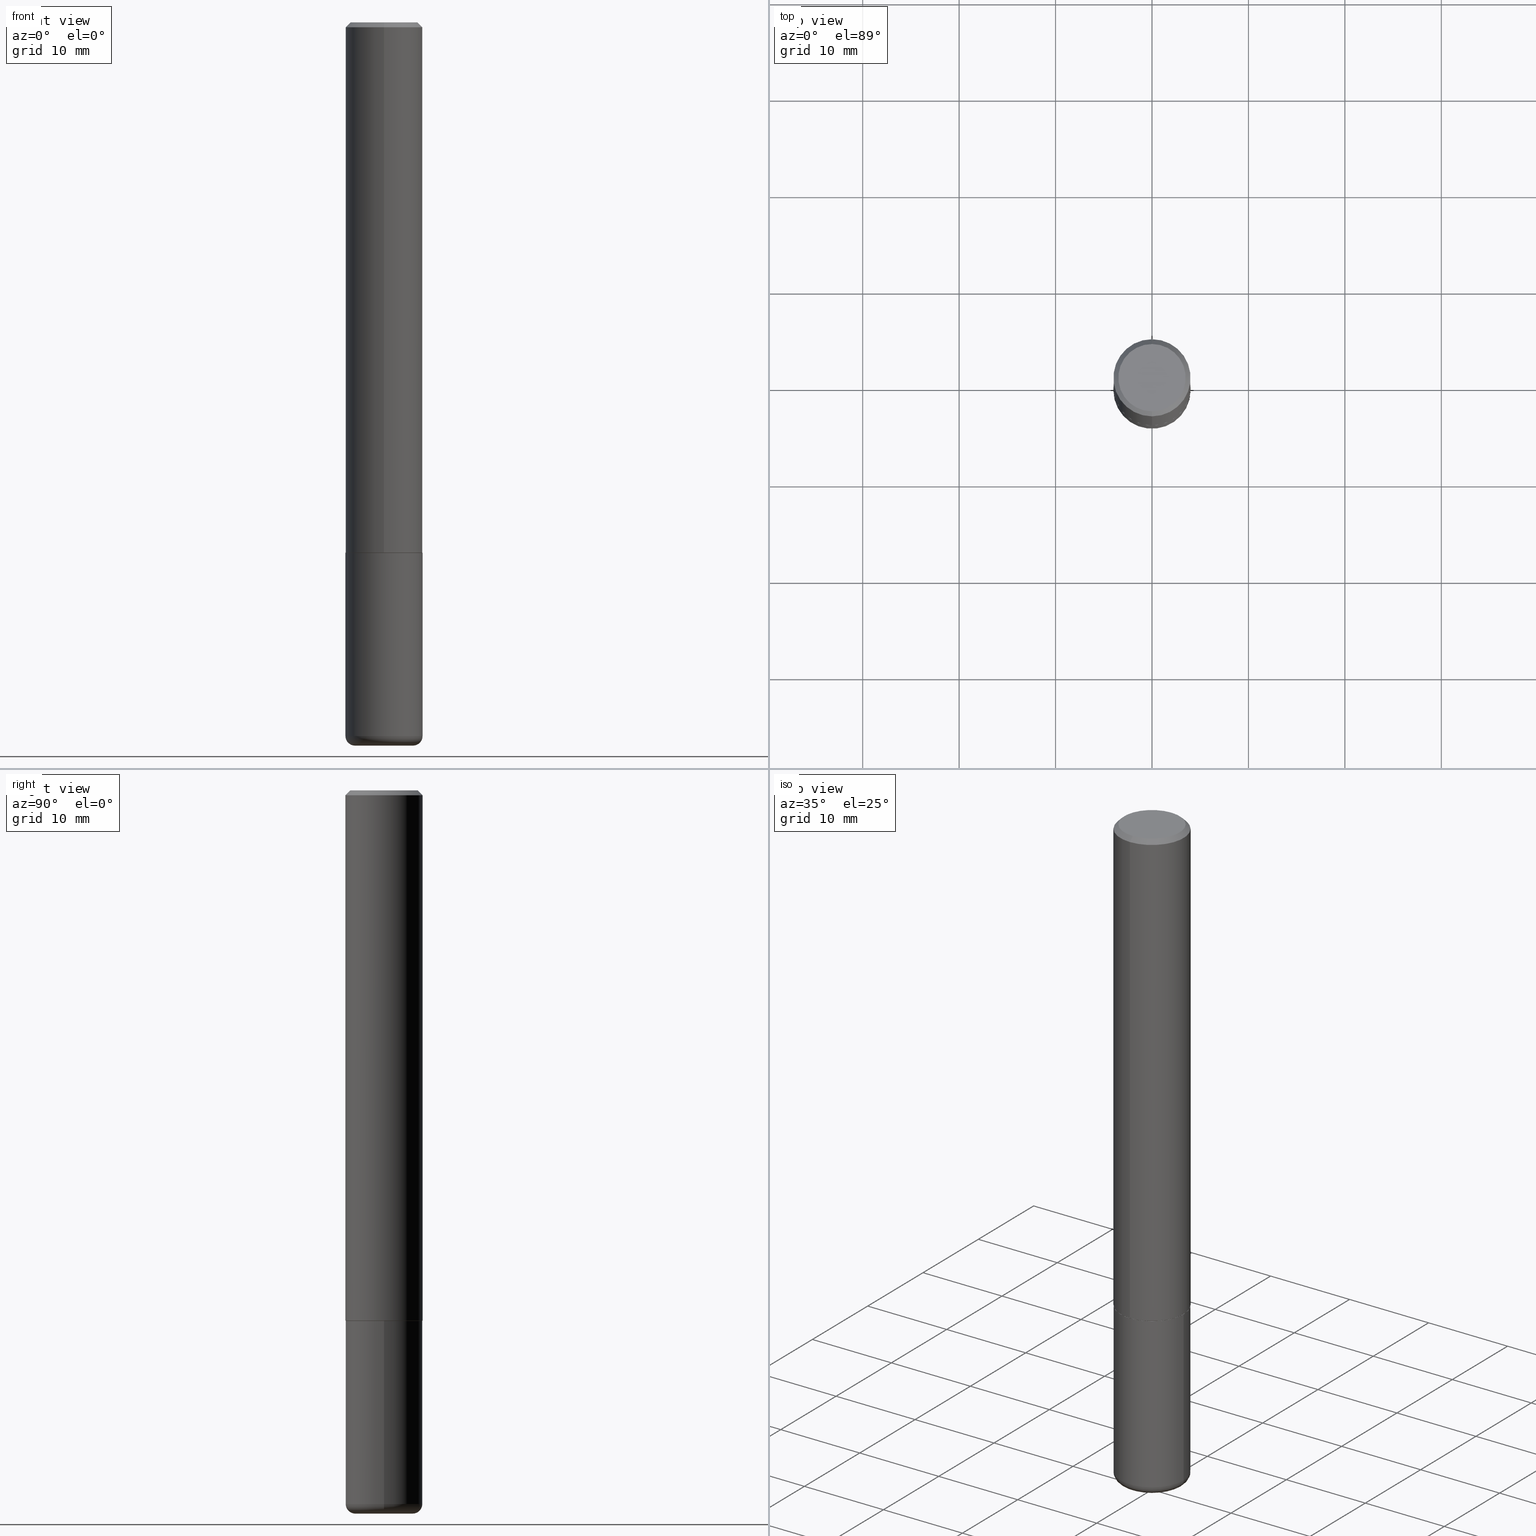
[diagram: canonical four-view strip — front | top / right | iso, engineering-drawing reading convention]
A machine part, canonical four-view strip (front | top / right | iso — engineering-drawing reading convention). The complete STEP part file that produces these views, byte-faithful:
ISO-10303-21;
HEADER;
FILE_DESCRIPTION (( 'STEP AP203' ),
    '1' );
FILE_NAME ('74357.STEP',
    '2024-03-06T15:08:49',
    ( '' ),
    ( '' ),
    'SwSTEP 2.0',
    'SolidWorks 2023',
    '' );
FILE_SCHEMA (( 'CONFIG_CONTROL_DESIGN' ));
ENDSEC;

DATA;
#1 = EDGE_LOOP ( 'NONE', ( #62, #51, #418, #318 ) ) ;
#2 = APPROVAL_STATUS ( 'not_yet_approved' ) ;
#3 = DIRECTION ( 'NONE',  ( -2.444928043019069804E-29, 3.492255742475281487E-15, 1.000000000000000000 ) ) ;
#4 =( NAMED_UNIT ( * ) PLANE_ANGLE_UNIT ( ) SI_UNIT ( $, .RADIAN. ) );
#5 = CYLINDRICAL_SURFACE ( 'NONE', #210, 0.1575000000000001676 ) ;
#6 = ORGANIZATION ( 'UNSPECIFIED', 'UNSPECIFIED', '' ) ;
#7 = ADVANCED_FACE ( 'NONE', ( #324 ), #64, .T. ) ;
#8 = CARTESIAN_POINT ( 'NONE',  ( 1.111999381464609449E-15, 0.1564999999999924507, -2.165400000000000436 ) ) ;
#9 = CARTESIAN_POINT ( 'NONE',  ( 4.889856086038147210E-31, -6.984511484950574659E-17, -0.02000000000000003511 ) ) ;
#10 = VECTOR ( 'NONE', #78, 39.37007874015748143 ) ;
#11 = LOCAL_TIME ( 10, 8, 49.00000000000000000, #183 ) ;
#12 = ADVANCED_FACE ( 'NONE', ( #160 ), #230, .T. ) ;
#13 = DIRECTION ( 'NONE',  ( 1.000000000000000000, -6.982962677686273021E-15, 0.000000000000000000 ) ) ;
#14 = PLANE ( 'NONE',  #195 ) ;
#15 = CARTESIAN_POINT ( 'NONE',  ( 5.294247184353492784E-29, -7.562130584755974132E-15, -2.165399999999999991 ) ) ;
#16 = CARTESIAN_POINT ( 'NONE',  ( -1.099816621735587875E-15, -0.1575000000000001676, 5.500302794398574170E-16 ) ) ;
#17 = CARTESIAN_POINT ( 'NONE',  ( 1.099816621735587480E-15, 0.1574999999999999456, -0.02000000000000058328 ) ) ;
#18 = PERSON_AND_ORGANIZATION_ROLE ( 'creator' ) ;
#19 = PERSON_AND_ORGANIZATION ( #333, #6 ) ;
#20 = LOCAL_TIME ( 10, 8, 49.00000000000000000, #58 ) ;
#21 = DIRECTION ( 'NONE',  ( -2.444928043019069804E-29, 3.492255742475281487E-15, 1.000000000000000000 ) ) ;
#22 = ORIENTED_EDGE ( 'NONE', *, *, #254, .T. ) ;
#23 = ADVANCED_FACE ( 'NONE', ( #89 ), #220, .F. ) ;
#24 = DIRECTION ( 'NONE',  ( -2.445468806185136597E-29, 3.491481338843145583E-15, 1.000000000000000000 ) ) ;
#25 = ORIENTED_EDGE ( 'NONE', *, *, #54, .F. ) ;
#26 = EDGE_CURVE ( 'NONE', #377, #386, #387, .T. ) ;
#27 = DIRECTION ( 'NONE',  ( -2.445468806185136597E-29, 3.491481338843145583E-15, 1.000000000000000000 ) ) ;
#28 = DIRECTION ( 'NONE',  ( -2.445468806185136877E-29, 3.491481338843145188E-15, 1.000000000000000000 ) ) ;
#29 = DIRECTION ( 'NONE',  ( 6.982962677686264344E-15, 1.000000000000000000, -3.496114991891764787E-15 ) ) ;
#30 = CIRCLE ( 'NONE', #349, 0.1575000000000000011 ) ;
#31 = ORIENTED_EDGE ( 'NONE', *, *, #44, .F. ) ;
#32 = CONICAL_SURFACE ( 'NONE', #231, 0.1565000000000000002, 0.7853981633975678500 ) ;
#33 = ORIENTED_EDGE ( 'NONE', *, *, #381, .F. ) ;
#34 = CARTESIAN_POINT ( 'NONE',  ( 0.000000000000000000, 0.000000000000000000, 0.000000000000000000 ) ) ;
#35 = EDGE_CURVE ( 'NONE', #266, #132, #405, .T. ) ;
#36 = AXIS2_PLACEMENT_3D ( 'NONE', #164, #229, #336 ) ;
#37 = DATE_TIME_ROLE ( 'classification_date' ) ;
#38 = DIRECTION ( 'NONE',  ( -2.444928043019069804E-29, 3.492255742475281487E-15, 1.000000000000000000 ) ) ;
#39 = CARTESIAN_POINT ( 'NONE',  ( -1.011923454671300053E-15, -0.1374999999999997891, 6.809117321244884418E-16 ) ) ;
#40 = VECTOR ( 'NONE', #100, 39.37007874015748143 ) ;
#41 = FACE_OUTER_BOUND ( 'NONE', #326, .T. ) ;
#42 = DESIGN_CONTEXT ( 'detailed design', #400, 'design' ) ;
#43 = DIRECTION ( 'NONE',  ( 4.937700262164546464E-15, 0.7071067811865447972, -0.7071067811865500152 ) ) ;
#44 = EDGE_CURVE ( 'NONE', #247, #180, #48, .T. ) ;
#45 = ADVANCED_FACE ( 'NONE', ( #308 ), #174, .T. ) ;
#46 = CARTESIAN_POINT ( 'NONE',  ( 0.000000000000000000, 0.000000000000000000, 0.000000000000000000 ) ) ;
#47 = ORIENTED_EDGE ( 'NONE', *, *, #331, .F. ) ;
#48 = CIRCLE ( 'NONE', #113, 0.1565000000000000002 ) ;
#49 = AXIS2_PLACEMENT_3D ( 'NONE', #77, #215, #258 ) ;
#50 = DIRECTION ( 'NONE',  ( -2.444928043019069243E-29, 3.492255742475281487E-15, 1.000000000000000000 ) ) ;
#51 = ORIENTED_EDGE ( 'NONE', *, *, #381, .T. ) ;
#52 = APPROVAL_STATUS ( 'not_yet_approved' ) ;
#53 = ORIENTED_EDGE ( 'NONE', *, *, #163, .F. ) ;
#54 = EDGE_CURVE ( 'NONE', #80, #351, #268, .T. ) ;
#55 = VERTEX_POINT ( 'NONE', #17 ) ;
#56 = VECTOR ( 'NONE', #130, 39.37007874015748143 ) ;
#57 = ORIENTED_EDGE ( 'NONE', *, *, #54, .T. ) ;
#58 = COORDINATED_UNIVERSAL_TIME_OFFSET ( 5, 0, .BEHIND. ) ;
#59 = CARTESIAN_POINT ( 'NONE',  ( -4.907620139431751550E-45, 7.009885081384458012E-31, 2.007265675341379917E-16 ) ) ;
#60 = ORIENTED_EDGE ( 'NONE', *, *, #137, .T. ) ;
#61 = CARTESIAN_POINT ( 'NONE',  ( 4.889856086038147210E-31, -6.984511484950574659E-17, -0.02000000000000003511 ) ) ;
#62 = ORIENTED_EDGE ( 'NONE', *, *, #98, .T. ) ;
#63 = ORIENTED_EDGE ( 'NONE', *, *, #163, .T. ) ;
#64 = CONICAL_SURFACE ( 'NONE', #415, 0.1575000000000000289, 0.7853981633974481680 ) ;
#65 = VECTOR ( 'NONE', #28, 39.37007874015748143 ) ;
#66 = CC_DESIGN_DATE_AND_TIME_ASSIGNMENT ( #151, #37, ( #269 ) ) ;
#67 = CIRCLE ( 'NONE', #103, 0.1180999999999999966 ) ;
#68 = CARTESIAN_POINT ( 'NONE',  ( -0.1575000000000000011, -7.747162903036124976E-15, -2.165399999999999991 ) ) ;
#69 = LINE ( 'NONE', #235, #375 ) ;
#70 = PRODUCT ( '74357', '74357', '', ( #292 ) ) ;
#71 = CARTESIAN_POINT ( 'NONE',  ( -1.080528434649015779E-15, -0.1575000000000000844, -0.01999999999999948347 ) ) ;
#72 = FACE_OUTER_BOUND ( 'NONE', #124, .T. ) ;
#73 = TOROIDAL_SURFACE ( 'NONE', #162, 0.1180999999999999966, 0.03940000000000005997 ) ;
#74 = DIRECTION ( 'NONE',  ( -6.982962677686265922E-15, -1.000000000000000000, 3.491179544618866730E-15 ) ) ;
#75 = ADVANCED_BREP_SHAPE_REPRESENTATION ( '74357', ( #197, #341, #306 ), #139 ) ;
#76 = EDGE_CURVE ( 'NONE', #386, #377, #30, .T. ) ;
#77 = CARTESIAN_POINT ( 'NONE',  ( 9.601573681818600950E-16, 0.1374999999999997891, -3.798218808232814543E-16 ) ) ;
#78 = DIRECTION ( 'NONE',  ( -2.444928043019069524E-29, 3.492255742475281487E-15, 1.000000000000000000 ) ) ;
#79 = CC_DESIGN_APPROVAL ( #199, ( #133 ) ) ;
#80 = VERTEX_POINT ( 'NONE', #307 ) ;
#81 = ADVANCED_FACE ( 'NONE', ( #394 ), #185, .T. ) ;
#82 = SHAPE_DEFINITION_REPRESENTATION ( #305, #75 ) ;
#83 = ORIENTED_EDGE ( 'NONE', *, *, #76, .T. ) ;
#84 = PRODUCT_DEFINITION_FORMATION_WITH_SPECIFIED_SOURCE ( 'ANY', '', #70, .NOT_KNOWN. ) ;
#85 = CARTESIAN_POINT ( 'NONE',  ( 4.889856086038147210E-31, -6.984511484950574659E-17, -0.02000000000000003511 ) ) ;
#86 = DIRECTION ( 'NONE',  ( 1.000000000000000000, 0.000000000000000000, 0.000000000000000000 ) ) ;
#87 = EDGE_LOOP ( 'NONE', ( #355, #47, #417, #117 ) ) ;
#88 = ADVANCED_FACE ( 'NONE', ( #41 ), #276, .T. ) ;
#89 = FACE_OUTER_BOUND ( 'NONE', #259, .T. ) ;
#90 = PERSON_AND_ORGANIZATION_ROLE ( 'design_owner' ) ;
#91 = EDGE_LOOP ( 'NONE', ( #121, #161 ) ) ;
#92 = FACE_OUTER_BOUND ( 'NONE', #119, .T. ) ;
#93 = COORDINATED_UNIVERSAL_TIME_OFFSET ( 5, 0, .BEHIND. ) ;
#94 = PERSON_AND_ORGANIZATION ( #333, #6 ) ;
#95 = CIRCLE ( 'NONE', #129, 0.1575000000000003064 ) ;
#96 = ORIENTED_EDGE ( 'NONE', *, *, #410, .F. ) ;
#97 = DIRECTION ( 'NONE',  ( -6.982962677686265133E-15, -1.000000000000000000, 3.492255742475281487E-15 ) ) ;
#98 = EDGE_CURVE ( 'NONE', #225, #351, #223, .T. ) ;
#99 = CARTESIAN_POINT ( 'NONE',  ( 0.1180999999999999966, -1.099676962482036915E-14, -2.913399999999999768 ) ) ;
#100 = DIRECTION ( 'NONE',  ( -2.445468806185136877E-29, 3.491481338843145188E-15, 1.000000000000000000 ) ) ;
#101 =( LENGTH_UNIT ( ) NAMED_UNIT ( * ) SI_UNIT ( $, .METRE. ) );
#102 = EDGE_CURVE ( 'NONE', #266, #55, #69, .T. ) ;
#103 = AXIS2_PLACEMENT_3D ( 'NONE', #282, #27, #253 ) ;
#104 = CARTESIAN_POINT ( 'NONE',  ( 4.889856086038147210E-31, -6.984511484950574659E-17, -0.02000000000000003511 ) ) ;
#105 = DIRECTION ( 'NONE',  ( -2.444928043019069804E-29, 3.492255742475281487E-15, 1.000000000000000000 ) ) ;
#106 = DIRECTION ( 'NONE',  ( -2.445468806185136597E-29, 3.491481338843145583E-15, 1.000000000000000000 ) ) ;
#107 = UNCERTAINTY_MEASURE_WITH_UNIT (LENGTH_MEASURE( 1.000000000000000082E-05 ), #196, 'distance_accuracy_value', 'NONE');
#108 = APPLICATION_PROTOCOL_DEFINITION ( 'international standard', 'config_control_design', 1994, #149 ) ;
#109 = DIRECTION ( 'NONE',  ( 1.000000000000000000, -6.982962677686268288E-15, 0.000000000000000000 ) ) ;
#110 = LINE ( 'NONE', #71, #358 ) ;
#111 = FACE_OUTER_BOUND ( 'NONE', #256, .T. ) ;
#112 = LINE ( 'NONE', #16, #10 ) ;
#113 = AXIS2_PLACEMENT_3D ( 'NONE', #303, #170, #74 ) ;
#114 = ADVANCED_FACE ( 'NONE', ( #72 ), #14, .F. ) ;
#115 = VECTOR ( 'NONE', #273, 39.37007874015748143 ) ;
#116 = CARTESIAN_POINT ( 'NONE',  ( 5.291802256310474180E-29, -7.558638329013498276E-15, -2.164399999999999658 ) ) ;
#117 = ORIENTED_EDGE ( 'NONE', *, *, #228, .T. ) ;
#118 = ORIENTED_EDGE ( 'NONE', *, *, #396, .T. ) ;
#119 = EDGE_LOOP ( 'NONE', ( #33, #158, #297, #402 ) ) ;
#120 = DATE_AND_TIME ( #284, #406 ) ;
#121 = ORIENTED_EDGE ( 'NONE', *, *, #331, .T. ) ;
#122 = PERSON_AND_ORGANIZATION ( #333, #6 ) ;
#123 = CALENDAR_DATE ( 2024, 6, 3 ) ;
#124 = EDGE_LOOP ( 'NONE', ( #356, #31 ) ) ;
#125 = APPROVAL_STATUS ( 'not_yet_approved' ) ;
#126 = ORIENTED_EDGE ( 'NONE', *, *, #410, .T. ) ;
#127 = ORIENTED_EDGE ( 'NONE', *, *, #102, .T. ) ;
#128 = CC_DESIGN_DATE_AND_TIME_ASSIGNMENT ( #255, #289, ( #133 ) ) ;
#129 = AXIS2_PLACEMENT_3D ( 'NONE', #203, #21, #148 ) ;
#130 = DIRECTION ( 'NONE',  ( -4.937700262165138110E-15, -0.7071067811866296182, 0.7071067811864654162 ) ) ;
#131 = ORIENTED_EDGE ( 'NONE', *, *, #98, .F. ) ;
#132 = VERTEX_POINT ( 'NONE', #243 ) ;
#133 = PRODUCT_DEFINITION ( 'UNKNOWN', '', #84, #42 ) ;
#134 = ORIENTED_EDGE ( 'NONE', *, *, #228, .F. ) ;
#135 = AXIS2_PLACEMENT_3D ( 'NONE', #191, #193, #202 ) ;
#136 = AXIS2_PLACEMENT_3D ( 'NONE', #61, #320, #328 ) ;
#137 = EDGE_CURVE ( 'NONE', #132, #380, #112, .T. ) ;
#138 = CARTESIAN_POINT ( 'NONE',  ( -0.1180999999999999966, -9.332930761652941905E-15, -2.913399999999999768 ) ) ;
#139 =( GEOMETRIC_REPRESENTATION_CONTEXT ( 3 ) GLOBAL_UNCERTAINTY_ASSIGNED_CONTEXT ( ( #107 ) ) GLOBAL_UNIT_ASSIGNED_CONTEXT ( ( #196, #4, #227 ) ) REPRESENTATION_CONTEXT ( 'NONE', 'WORKASPACE' ) );
#140 = DIRECTION ( 'NONE',  ( 2.438088387897960049E-29, -3.491481338843145188E-15, -1.000000000000000000 ) ) ;
#141 = CC_DESIGN_PERSON_AND_ORGANIZATION_ASSIGNMENT ( #122, #211, ( #269 ) ) ;
#142 = DIMENSIONAL_EXPONENTS ( 1.000000000000000000, 0.000000000000000000, 0.000000000000000000, 0.000000000000000000, 0.000000000000000000, 0.000000000000000000, 0.000000000000000000 ) ;
#143 = DIRECTION ( 'NONE',  ( 7.105427357601001859E-15, 1.000000000000000000, -3.491481338843145583E-15 ) ) ;
#144 = AXIS2_PLACEMENT_3D ( 'NONE', #302, #367, #232 ) ;
#145 = AXIS2_PLACEMENT_3D ( 'NONE', #9, #205, #238 ) ;
#146 = AXIS2_PLACEMENT_3D ( 'NONE', #186, #213, #154 ) ;
#147 = CARTESIAN_POINT ( 'NONE',  ( 5.294247184353492784E-29, -7.562130584755974132E-15, -2.165399999999999991 ) ) ;
#148 = DIRECTION ( 'NONE',  ( -6.982962677686265133E-15, -1.000000000000000000, 3.469013325287946588E-15 ) ) ;
#149 = APPLICATION_CONTEXT ( 'configuration controlled 3d designs of mechanical parts and assemblies' ) ;
#150 = COORDINATED_UNIVERSAL_TIME_OFFSET ( 5, 0, .BEHIND. ) ;
#151 = DATE_AND_TIME ( #317, #11 ) ;
#152 = CC_DESIGN_APPROVAL ( #271, ( #269 ) ) ;
#153 = CARTESIAN_POINT ( 'NONE',  ( 7.124628819939776708E-29, -1.017208173258561931E-14, -2.913399999999999768 ) ) ;
#154 = DIRECTION ( 'NONE',  ( 1.000000000000000000, -6.982962677686261977E-15, 0.000000000000000000 ) ) ;
#155 = ORIENTED_EDGE ( 'NONE', *, *, #35, .F. ) ;
#156 = ADVANCED_FACE ( 'NONE', ( #207 ), #241, .T. ) ;
#157 = DIRECTION ( 'NONE',  ( -6.982962677686264344E-15, -1.000000000000000000, 3.496114991891764787E-15 ) ) ;
#158 = ORIENTED_EDGE ( 'NONE', *, *, #298, .T. ) ;
#159 = DIRECTION ( 'NONE',  ( -2.444928043019069804E-29, 3.492255742475281487E-15, 1.000000000000000000 ) ) ;
#160 = FACE_OUTER_BOUND ( 'NONE', #252, .T. ) ;
#161 = ORIENTED_EDGE ( 'NONE', *, *, #285, .T. ) ;
#162 = AXIS2_PLACEMENT_3D ( 'NONE', #153, #288, #332 ) ;
#163 = EDGE_CURVE ( 'NONE', #132, #266, #95, .T. ) ;
#164 = CARTESIAN_POINT ( 'NONE',  ( 5.294247184353492784E-29, -7.562130584755974132E-15, -2.165399999999999991 ) ) ;
#165 = DIRECTION ( 'NONE',  ( 1.000000000000000000, -6.982962677686265922E-15, 4.876176775795935232E-29 ) ) ;
#166 = CARTESIAN_POINT ( 'NONE',  ( 0.000000000000000000, 0.000000000000000000, 0.000000000000000000 ) ) ;
#167 = CC_DESIGN_PERSON_AND_ORGANIZATION_ASSIGNMENT ( #94, #90, ( #70 ) ) ;
#168 = DIRECTION ( 'NONE',  ( -2.445468806185136597E-29, 3.491481338843145583E-15, 1.000000000000000000 ) ) ;
#169 = DIRECTION ( 'NONE',  ( 1.000000000000000000, -6.982962677686268288E-15, 0.000000000000000000 ) ) ;
#170 = DIRECTION ( 'NONE',  ( -2.444928043019069804E-29, 3.492255742475281487E-15, 1.000000000000000000 ) ) ;
#171 = CARTESIAN_POINT ( 'NONE',  ( 1.119104808822185805E-15, 0.1574999999999927569, -2.164400000000000102 ) ) ;
#172 = DIRECTION ( 'NONE',  ( -2.445468806185136597E-29, 3.491481338843145583E-15, 1.000000000000000000 ) ) ;
#173 = APPROVAL_PERSON_ORGANIZATION ( #222, #199, #264 ) ;
#174 = PLANE ( 'NONE',  #209 ) ;
#175 = EDGE_CURVE ( 'NONE', #180, #247, #384, .T. ) ;
#176 = ORIENTED_EDGE ( 'NONE', *, *, #102, .F. ) ;
#177 = DIRECTION ( 'NONE',  ( -6.982962677686265922E-15, -1.000000000000000000, 3.491179544618866730E-15 ) ) ;
#178 = CLOSED_SHELL ( 'NONE', ( #357, #88, #7, #81, #366, #325, #114, #340 ) ) ;
#179 = DIRECTION ( 'NONE',  ( 1.000000000000000000, -6.982962677686265922E-15, 4.876176775795935232E-29 ) ) ;
#180 = VERTEX_POINT ( 'NONE', #373 ) ;
#181 = CIRCLE ( 'NONE', #146, 0.1575000000000000011 ) ;
#182 = ORIENTED_EDGE ( 'NONE', *, *, #285, .F. ) ;
#183 = COORDINATED_UNIVERSAL_TIME_OFFSET ( 5, 0, .BEHIND. ) ;
#184 = CARTESIAN_POINT ( 'NONE',  ( 1.115552095143411136E-15, 0.1564999999999924507, -2.165400000000000436 ) ) ;
#185 = CONICAL_SURFACE ( 'NONE', #145, 0.1575000000000000289, 0.7853981633974481680 ) ;
#186 = CARTESIAN_POINT ( 'NONE',  ( 7.124628819939776708E-29, -1.017208173258561931E-14, -2.913399999999999768 ) ) ;
#187 = AXIS2_PLACEMENT_3D ( 'NONE', #370, #309, #277 ) ;
#188 = ORIENTED_EDGE ( 'NONE', *, *, #315, .F. ) ;
#189 = CALENDAR_DATE ( 2024, 6, 3 ) ;
#190 = CARTESIAN_POINT ( 'NONE',  ( 0.1575000000000000011, -1.099816621735586889E-15, 7.679978421878598033E-30 ) ) ;
#191 = CARTESIAN_POINT ( 'NONE',  ( 5.295418152913294345E-29, -7.560453691130947423E-15, -2.165399999999999991 ) ) ;
#192 = APPLICATION_PROTOCOL_DEFINITION ( 'international standard', 'config_control_design', 1994, #400 ) ;
#193 = DIRECTION ( 'NONE',  ( 2.438088387897960049E-29, -3.491481338843145188E-15, -1.000000000000000000 ) ) ;
#194 = ORIENTED_EDGE ( 'NONE', *, *, #175, .T. ) ;
#195 = AXIS2_PLACEMENT_3D ( 'NONE', #311, #50, #279 ) ;
#196 =( CONVERSION_BASED_UNIT ( 'INCH', #392 ) LENGTH_UNIT ( ) NAMED_UNIT ( #142 ) );
#197 = MANIFOLD_SOLID_BREP ( 'Body-Move/Copy2[1]', #334 ) ;
#198 = APPROVAL_PERSON_ORGANIZATION ( #237, #271, #251 ) ;
#199 = APPROVAL ( #2, 'UNSPECIFIED' ) ;
#200 = CC_DESIGN_APPROVAL ( #361, ( #84 ) ) ;
#201 = CARTESIAN_POINT ( 'NONE',  ( 0.1575000000000000011, -8.660270312866534114E-15, -2.165399999999999991 ) ) ;
#202 = DIRECTION ( 'NONE',  ( -1.000000000000000000, 6.982962677686265922E-15, -4.876176775795935793E-29 ) ) ;
#203 = CARTESIAN_POINT ( 'NONE',  ( 5.291802256310474180E-29, -7.558638329013498276E-15, -2.164399999999999658 ) ) ;
#204 = EDGE_CURVE ( 'NONE', #80, #329, #67, .T. ) ;
#205 = DIRECTION ( 'NONE',  ( 2.444928043019069804E-29, -3.492255742475281487E-15, -1.000000000000000000 ) ) ;
#206 = DIRECTION ( 'NONE',  ( -1.000000000000000000, 7.105427357601014480E-15, 0.000000000000000000 ) ) ;
#207 = FACE_OUTER_BOUND ( 'NONE', #1, .T. ) ;
#208 = CC_DESIGN_PERSON_AND_ORGANIZATION_ASSIGNMENT ( #403, #248, ( #84 ) ) ;
#209 = AXIS2_PLACEMENT_3D ( 'NONE', #275, #140, #395 ) ;
#210 = AXIS2_PLACEMENT_3D ( 'NONE', #34, #3, #97 ) ;
#211 = PERSON_AND_ORGANIZATION_ROLE ( 'classification_officer' ) ;
#212 = PERSON_AND_ORGANIZATION ( #333, #6 ) ;
#213 = DIRECTION ( 'NONE',  ( -2.445468806185136597E-29, 3.491481338843145583E-15, 1.000000000000000000 ) ) ;
#214 = CC_DESIGN_PERSON_AND_ORGANIZATION_ASSIGNMENT ( #212, #321, ( #133 ) ) ;
#215 = DIRECTION ( 'NONE',  ( 2.444928043019069243E-29, -3.492255742475281487E-15, -1.000000000000000000 ) ) ;
#216 = AXIS2_PLACEMENT_3D ( 'NONE', #398, #363, #109 ) ;
#217 = CIRCLE ( 'NONE', #360, 0.1374999999999997891 ) ;
#218 = DIRECTION ( 'NONE',  ( 2.444928043019069804E-29, -3.492255742475281487E-15, -1.000000000000000000 ) ) ;
#219 = ORIENTED_EDGE ( 'NONE', *, *, #298, .F. ) ;
#220 = PLANE ( 'NONE',  #135 ) ;
#221 = EDGE_LOOP ( 'NONE', ( #182, #22, #118, #316 ) ) ;
#222 = PERSON_AND_ORGANIZATION ( #333, #6 ) ;
#223 = CIRCLE ( 'NONE', #144, 0.1575000000000000011 ) ;
#224 = LOCAL_TIME ( 10, 8, 49.00000000000000000, #150 ) ;
#225 = VERTEX_POINT ( 'NONE', #293 ) ;
#226 = DIRECTION ( 'NONE',  ( -2.444928043019069804E-29, 3.492255742475281487E-15, 1.000000000000000000 ) ) ;
#227 =( NAMED_UNIT ( * ) SI_UNIT ( $, .STERADIAN. ) SOLID_ANGLE_UNIT ( ) );
#228 = EDGE_CURVE ( 'NONE', #55, #380, #240, .T. ) ;
#229 = DIRECTION ( 'NONE',  ( -2.444928043019069804E-29, 3.492255742475281487E-15, 1.000000000000000000 ) ) ;
#230 = TOROIDAL_SURFACE ( 'NONE', #304, 0.1180999999999999966, 0.03940000000000005997 ) ;
#231 = AXIS2_PLACEMENT_3D ( 'NONE', #15, #236, #177 ) ;
#232 = DIRECTION ( 'NONE',  ( 1.000000000000000000, -6.982962677686261977E-15, 0.000000000000000000 ) ) ;
#233 = CARTESIAN_POINT ( 'NONE',  ( 7.220980290903470182E-29, -1.030964609733603853E-14, -2.952799999999999869 ) ) ;
#234 = PRODUCT_RELATED_PRODUCT_CATEGORY ( 'detail', '', ( #70 ) ) ;
#235 = CARTESIAN_POINT ( 'NONE',  ( 1.119104808822158787E-15, 0.1575000000000001676, -5.500302794398574170E-16 ) ) ;
#236 = DIRECTION ( 'NONE',  ( -2.444928043019069804E-29, 3.492255742475281487E-15, 1.000000000000000000 ) ) ;
#237 = PERSON_AND_ORGANIZATION ( #333, #6 ) ;
#238 = DIRECTION ( 'NONE',  ( 6.982962677686264344E-15, 1.000000000000000000, -3.496114991891764787E-15 ) ) ;
#239 = CARTESIAN_POINT ( 'NONE',  ( 0.1180999999999999966, -1.113433398957078679E-14, -2.952799999999999869 ) ) ;
#240 = CIRCLE ( 'NONE', #136, 0.1575000000000000289 ) ;
#241 = CYLINDRICAL_SURFACE ( 'NONE', #312, 0.1575000000000000011 ) ;
#242 = CARTESIAN_POINT ( 'NONE',  ( 0.000000000000000000, 0.000000000000000000, 0.000000000000000000 ) ) ;
#243 = CARTESIAN_POINT ( 'NONE',  ( -1.099816621735536007E-15, -0.1575000000000078559, -2.164399999999999213 ) ) ;
#244 = ORIENTED_EDGE ( 'NONE', *, *, #352, .T. ) ;
#245 = ADVANCED_FACE ( 'NONE', ( #346 ), #73, .T. ) ;
#246 = DIRECTION ( 'NONE',  ( -6.982962677686265922E-15, -1.000000000000000000, 3.491179544618866730E-15 ) ) ;
#247 = VERTEX_POINT ( 'NONE', #184 ) ;
#248 = PERSON_AND_ORGANIZATION_ROLE ( 'design_supplier' ) ;
#249 = APPROVAL_PERSON_ORGANIZATION ( #411, #361, #257 ) ;
#250 = VERTEX_POINT ( 'NONE', #362 ) ;
#251 = APPROVAL_ROLE ( '' ) ;
#252 = EDGE_LOOP ( 'NONE', ( #382, #57, #131, #96 ) ) ;
#253 = DIRECTION ( 'NONE',  ( 1.000000000000000000, -6.982962677686273021E-15, 0.000000000000000000 ) ) ;
#254 = EDGE_CURVE ( 'NONE', #265, #380, #110, .T. ) ;
#255 = DATE_AND_TIME ( #123, #278 ) ;
#256 = EDGE_LOOP ( 'NONE', ( #407, #287, #244, #155 ) ) ;
#257 = APPROVAL_ROLE ( '' ) ;
#258 = DIRECTION ( 'NONE',  ( 6.982962677686265922E-15, 1.000000000000000000, -3.492255742475281487E-15 ) ) ;
#259 = EDGE_LOOP ( 'NONE', ( #83, #343 ) ) ;
#260 = ORIENTED_EDGE ( 'NONE', *, *, #352, .F. ) ;
#261 = AXIS2_PLACEMENT_3D ( 'NONE', #147, #281, #246 ) ;
#262 = DIRECTION ( 'NONE',  ( -2.445468806185136597E-29, 3.491481338843145583E-15, 1.000000000000000000 ) ) ;
#263 = FACE_OUTER_BOUND ( 'NONE', #409, .T. ) ;
#264 = APPROVAL_ROLE ( '' ) ;
#265 = VERTEX_POINT ( 'NONE', #39 ) ;
#266 = VERTEX_POINT ( 'NONE', #171 ) ;
#267 = CYLINDRICAL_SURFACE ( 'NONE', #335, 0.1575000000000000011 ) ;
#268 = CIRCLE ( 'NONE', #319, 0.03940000000000005997 ) ;
#269 = SECURITY_CLASSIFICATION ( '', '', #374 ) ;
#270 = CARTESIAN_POINT ( 'NONE',  ( -0.1575000000000000011, 1.119104808822157801E-15, -7.747322767151475583E-30 ) ) ;
#271 = APPROVAL ( #52, 'UNSPECIFIED' ) ;
#272 = CARTESIAN_POINT ( 'NONE',  ( -1.080528434649015779E-15, -0.1575000000000000844, -0.01999999999999948347 ) ) ;
#273 = DIRECTION ( 'NONE',  ( 5.024295867788662713E-15, 0.7071067811866345032, 0.7071067811864605313 ) ) ;
#274 = DIRECTION ( 'NONE',  ( -6.982962677686265133E-15, -1.000000000000000000, 3.469013325287946588E-15 ) ) ;
#275 = CARTESIAN_POINT ( 'NONE',  ( 7.220980290903470182E-29, -1.030964609733603853E-14, -2.952799999999999869 ) ) ;
#276 = CYLINDRICAL_SURFACE ( 'NONE', #368, 0.1575000000000001676 ) ;
#277 = DIRECTION ( 'NONE',  ( -6.982962677686265922E-15, -1.000000000000000000, 3.492255742475281487E-15 ) ) ;
#278 = LOCAL_TIME ( 10, 8, 49.00000000000000000, #286 ) ;
#279 = DIRECTION ( 'NONE',  ( -6.982962677686265922E-15, -1.000000000000000000, 3.492255742475281487E-15 ) ) ;
#280 = EDGE_CURVE ( 'NONE', #225, #386, #323, .T. ) ;
#281 = DIRECTION ( 'NONE',  ( -2.444928043019069804E-29, 3.492255742475281487E-15, 1.000000000000000000 ) ) ;
#282 = CARTESIAN_POINT ( 'NONE',  ( 7.220980290903470182E-29, -1.030964609733603853E-14, -2.952799999999999869 ) ) ;
#283 = CALENDAR_DATE ( 2024, 6, 3 ) ;
#284 = CALENDAR_DATE ( 2024, 6, 3 ) ;
#285 = EDGE_CURVE ( 'NONE', #265, #250, #217, .T. ) ;
#286 = COORDINATED_UNIVERSAL_TIME_OFFSET ( 5, 0, .BEHIND. ) ;
#287 = ORIENTED_EDGE ( 'NONE', *, *, #44, .T. ) ;
#288 = DIRECTION ( 'NONE',  ( -2.445468806185136597E-29, 3.491481338843145583E-15, 1.000000000000000000 ) ) ;
#289 = DATE_TIME_ROLE ( 'creation_date' ) ;
#290 = EDGE_LOOP ( 'NONE', ( #188, #412 ) ) ;
#291 = CARTESIAN_POINT ( 'NONE',  ( 7.124628819939776708E-29, -1.017208173258561931E-14, -2.913399999999999768 ) ) ;
#292 = MECHANICAL_CONTEXT ( 'NONE', #149, 'mechanical' ) ;
#293 = CARTESIAN_POINT ( 'NONE',  ( 0.1575000000000000289, -1.127189835432120758E-14, -2.913399999999999768 ) ) ;
#294 = CARTESIAN_POINT ( 'NONE',  ( -1.092833659057847823E-15, -0.1565000000000075497, -2.165399999999999103 ) ) ;
#295 = CC_DESIGN_PERSON_AND_ORGANIZATION_ASSIGNMENT ( #19, #18, ( #84 ) ) ;
#296 = APPROVAL_DATE_TIME ( #120, #199 ) ;
#297 = ORIENTED_EDGE ( 'NONE', *, *, #280, .T. ) ;
#298 = EDGE_CURVE ( 'NONE', #351, #225, #181, .T. ) ;
#299 = AXIS2_PLACEMENT_3D ( 'NONE', #116, #105, #274 ) ;
#300 = VECTOR ( 'NONE', #43, 39.37007874015748854 ) ;
#301 = FACE_OUTER_BOUND ( 'NONE', #313, .T. ) ;
#302 = CARTESIAN_POINT ( 'NONE',  ( 7.124628819939776708E-29, -1.017208173258561931E-14, -2.913399999999999768 ) ) ;
#303 = CARTESIAN_POINT ( 'NONE',  ( 5.294247184353492784E-29, -7.562130584755974132E-15, -2.165399999999999991 ) ) ;
#304 = AXIS2_PLACEMENT_3D ( 'NONE', #291, #262, #385 ) ;
#305 = PRODUCT_DEFINITION_SHAPE ( 'NONE', 'NONE',  #133 ) ;
#306 = AXIS2_PLACEMENT_3D ( 'NONE', #327, #383, #86 ) ;
#307 = CARTESIAN_POINT ( 'NONE',  ( -0.1180999999999999966, -9.261736025083411415E-15, -2.952799999999999869 ) ) ;
#308 = FACE_OUTER_BOUND ( 'NONE', #290, .T. ) ;
#309 = DIRECTION ( 'NONE',  ( -2.444928043019069804E-29, 3.492255742475281487E-15, 1.000000000000000000 ) ) ;
#310 = EDGE_CURVE ( 'NONE', #250, #55, #347, .T. ) ;
#311 = CARTESIAN_POINT ( 'NONE',  ( 5.294247184353492784E-29, -7.562130584755974132E-15, -2.165399999999999991 ) ) ;
#312 = AXIS2_PLACEMENT_3D ( 'NONE', #46, #24, #179 ) ;
#313 = EDGE_LOOP ( 'NONE', ( #176, #348, #60, #134 ) ) ;
#314 = ORIENTED_EDGE ( 'NONE', *, *, #137, .F. ) ;
#315 = EDGE_CURVE ( 'NONE', #329, #80, #330, .T. ) ;
#316 = ORIENTED_EDGE ( 'NONE', *, *, #310, .F. ) ;
#317 = CALENDAR_DATE ( 2024, 6, 3 ) ;
#318 = ORIENTED_EDGE ( 'NONE', *, *, #280, .F. ) ;
#319 = AXIS2_PLACEMENT_3D ( 'NONE', #138, #143, #206 ) ;
#320 = DIRECTION ( 'NONE',  ( -2.444928043019069804E-29, 3.492255742475281487E-15, 1.000000000000000000 ) ) ;
#321 = PERSON_AND_ORGANIZATION_ROLE ( 'creator' ) ;
#322 = LINE ( 'NONE', #294, #56 ) ;
#323 = LINE ( 'NONE', #190, #65 ) ;
#324 = FACE_OUTER_BOUND ( 'NONE', #221, .T. ) ;
#325 = ADVANCED_FACE ( 'NONE', ( #111 ), #32, .T. ) ;
#326 = EDGE_LOOP ( 'NONE', ( #63, #127, #414, #314 ) ) ;
#327 = CARTESIAN_POINT ( 'NONE',  ( 0.000000000000000000, 0.000000000000000000, 0.000000000000000000 ) ) ;
#328 = DIRECTION ( 'NONE',  ( -6.982962677686264344E-15, -1.000000000000000000, 3.496114991891764787E-15 ) ) ;
#329 = VERTEX_POINT ( 'NONE', #239 ) ;
#330 = CIRCLE ( 'NONE', #416, 0.1180999999999999966 ) ;
#331 = EDGE_CURVE ( 'NONE', #250, #265, #369, .T. ) ;
#332 = DIRECTION ( 'NONE',  ( 1.000000000000000000, -6.982962677686271444E-15, 4.883557194083114583E-29 ) ) ;
#333 = PERSON ( 'UNSPECIFIED', 'UNSPECIFIED', 'UNSPECIFIED', ('UNSPECIFIED'), ('UNSPECIFIED'), ('UNSPECIFIED') ) ;
#334 = CLOSED_SHELL ( 'NONE', ( #156, #12, #23, #397, #245, #45 ) ) ;
#335 = AXIS2_PLACEMENT_3D ( 'NONE', #166, #168, #165 ) ;
#336 = DIRECTION ( 'NONE',  ( -6.982962677686265922E-15, -1.000000000000000000, 3.491179544618866730E-15 ) ) ;
#337 = DIRECTION ( 'NONE',  ( -6.982962677686266711E-15, -1.000000000000000000, 3.491481338843145583E-15 ) ) ;
#338 = CIRCLE ( 'NONE', #376, 0.1575000000000000289 ) ;
#339 = CARTESIAN_POINT ( 'NONE',  ( 5.295418152913294345E-29, -7.560453691130947423E-15, -2.165399999999999991 ) ) ;
#340 = ADVANCED_FACE ( 'NONE', ( #399 ), #372, .F. ) ;
#341 = MANIFOLD_SOLID_BREP ( 'Body-Move/Copy2[2]', #178 ) ;
#342 = APPROVAL_DATE_TIME ( #344, #361 ) ;
#343 = ORIENTED_EDGE ( 'NONE', *, *, #26, .T. ) ;
#344 = DATE_AND_TIME ( #189, #20 ) ;
#345 = CONICAL_SURFACE ( 'NONE', #36, 0.1565000000000000002, 0.7853981633975678500 ) ;
#346 = FACE_OUTER_BOUND ( 'NONE', #408, .T. ) ;
#347 = LINE ( 'NONE', #401, #300 ) ;
#348 = ORIENTED_EDGE ( 'NONE', *, *, #35, .T. ) ;
#349 = AXIS2_PLACEMENT_3D ( 'NONE', #339, #106, #169 ) ;
#350 = CIRCLE ( 'NONE', #393, 0.03940000000000005997 ) ;
#351 = VERTEX_POINT ( 'NONE', #379 ) ;
#352 = EDGE_CURVE ( 'NONE', #180, #132, #322, .T. ) ;
#353 = DIRECTION ( 'NONE',  ( -6.982962677686265922E-15, -1.000000000000000000, 3.492255742475281487E-15 ) ) ;
#354 = ORIENTED_EDGE ( 'NONE', *, *, #204, .T. ) ;
#355 = ORIENTED_EDGE ( 'NONE', *, *, #254, .F. ) ;
#356 = ORIENTED_EDGE ( 'NONE', *, *, #175, .F. ) ;
#357 = ADVANCED_FACE ( 'NONE', ( #263 ), #345, .T. ) ;
#358 = VECTOR ( 'NONE', #365, 39.37007874015748854 ) ;
#359 = DIRECTION ( 'NONE',  ( 1.000000000000000000, -6.982962677686267499E-15, 0.000000000000000000 ) ) ;
#360 = AXIS2_PLACEMENT_3D ( 'NONE', #59, #159, #353 ) ;
#361 = APPROVAL ( #125, 'UNSPECIFIED' ) ;
#362 = CARTESIAN_POINT ( 'NONE',  ( 1.029986994958723788E-15, 0.1374999999999997891, -2.794585970562124091E-16 ) ) ;
#363 = DIRECTION ( 'NONE',  ( -2.445468806185136597E-29, 3.491481338843145583E-15, 1.000000000000000000 ) ) ;
#364 = DIRECTION ( 'NONE',  ( -2.444928043019069524E-29, 3.492255742475281487E-15, 1.000000000000000000 ) ) ;
#365 = DIRECTION ( 'NONE',  ( -4.851104656540962697E-15, -0.7071067811865497932, -0.7071067811865451302 ) ) ;
#366 = ADVANCED_FACE ( 'NONE', ( #301 ), #5, .T. ) ;
#367 = DIRECTION ( 'NONE',  ( -2.445468806185136597E-29, 3.491481338843145583E-15, 1.000000000000000000 ) ) ;
#368 = AXIS2_PLACEMENT_3D ( 'NONE', #242, #38, #371 ) ;
#369 = CIRCLE ( 'NONE', #187, 0.1374999999999997891 ) ;
#370 = CARTESIAN_POINT ( 'NONE',  ( -4.907620139431751550E-45, 7.009885081384458012E-31, 2.007265675341379917E-16 ) ) ;
#371 = DIRECTION ( 'NONE',  ( -6.982962677686265133E-15, -1.000000000000000000, 3.492255742475281487E-15 ) ) ;
#372 = PLANE ( 'NONE',  #49 ) ;
#373 = CARTESIAN_POINT ( 'NONE',  ( -1.092833659057847823E-15, -0.1565000000000075497, -2.165399999999999103 ) ) ;
#374 = SECURITY_CLASSIFICATION_LEVEL ( 'unclassified' ) ;
#375 = VECTOR ( 'NONE', #364, 39.37007874015748143 ) ;
#376 = AXIS2_PLACEMENT_3D ( 'NONE', #104, #226, #157 ) ;
#377 = VERTEX_POINT ( 'NONE', #68 ) ;
#378 = APPROVAL_DATE_TIME ( #404, #271 ) ;
#379 = CARTESIAN_POINT ( 'NONE',  ( -0.1575000000000000289, -9.052976923763463288E-15, -2.913399999999999768 ) ) ;
#380 = VERTEX_POINT ( 'NONE', #272 ) ;
#381 = EDGE_CURVE ( 'NONE', #351, #377, #390, .T. ) ;
#382 = ORIENTED_EDGE ( 'NONE', *, *, #315, .T. ) ;
#383 = DIRECTION ( 'NONE',  ( 0.000000000000000000, 0.000000000000000000, 1.000000000000000000 ) ) ;
#384 = CIRCLE ( 'NONE', #261, 0.1565000000000000002 ) ;
#385 = DIRECTION ( 'NONE',  ( 1.000000000000000000, -6.982962677686271444E-15, 4.883557194083114583E-29 ) ) ;
#386 = VERTEX_POINT ( 'NONE', #201 ) ;
#387 = CIRCLE ( 'NONE', #216, 0.1575000000000000011 ) ;
#388 = LINE ( 'NONE', #8, #115 ) ;
#389 = CC_DESIGN_SECURITY_CLASSIFICATION ( #269, ( #84 ) ) ;
#390 = LINE ( 'NONE', #270, #40 ) ;
#391 = EDGE_CURVE ( 'NONE', #247, #266, #388, .T. ) ;
#392 = LENGTH_MEASURE_WITH_UNIT ( LENGTH_MEASURE( 0.02539999999999999897 ), #101 );
#393 = AXIS2_PLACEMENT_3D ( 'NONE', #99, #337, #359 ) ;
#394 = FACE_OUTER_BOUND ( 'NONE', #87, .T. ) ;
#395 = DIRECTION ( 'NONE',  ( -1.000000000000000000, 6.982962677686265922E-15, -4.876176775795935793E-29 ) ) ;
#396 = EDGE_CURVE ( 'NONE', #380, #55, #338, .T. ) ;
#397 = ADVANCED_FACE ( 'NONE', ( #92 ), #267, .T. ) ;
#398 = CARTESIAN_POINT ( 'NONE',  ( 5.295418152913294345E-29, -7.560453691130947423E-15, -2.165399999999999991 ) ) ;
#399 = FACE_OUTER_BOUND ( 'NONE', #91, .T. ) ;
#400 = APPLICATION_CONTEXT ( 'configuration controlled 3d designs of mechanical parts and assemblies' ) ;
#401 = CARTESIAN_POINT ( 'NONE',  ( 1.099816621735587480E-15, 0.1574999999999999456, -0.02000000000000058328 ) ) ;
#402 = ORIENTED_EDGE ( 'NONE', *, *, #26, .F. ) ;
#403 = PERSON_AND_ORGANIZATION ( #333, #6 ) ;
#404 = DATE_AND_TIME ( #283, #224 ) ;
#405 = CIRCLE ( 'NONE', #299, 0.1575000000000003064 ) ;
#406 = LOCAL_TIME ( 10, 8, 49.00000000000000000, #93 ) ;
#407 = ORIENTED_EDGE ( 'NONE', *, *, #391, .F. ) ;
#408 = EDGE_LOOP ( 'NONE', ( #25, #354, #126, #219 ) ) ;
#409 = EDGE_LOOP ( 'NONE', ( #194, #413, #53, #260 ) ) ;
#410 = EDGE_CURVE ( 'NONE', #329, #225, #350, .T. ) ;
#411 = PERSON_AND_ORGANIZATION ( #333, #6 ) ;
#412 = ORIENTED_EDGE ( 'NONE', *, *, #204, .F. ) ;
#413 = ORIENTED_EDGE ( 'NONE', *, *, #391, .T. ) ;
#414 = ORIENTED_EDGE ( 'NONE', *, *, #396, .F. ) ;
#415 = AXIS2_PLACEMENT_3D ( 'NONE', #85, #218, #29 ) ;
#416 = AXIS2_PLACEMENT_3D ( 'NONE', #233, #172, #13 ) ;
#417 = ORIENTED_EDGE ( 'NONE', *, *, #310, .T. ) ;
#418 = ORIENTED_EDGE ( 'NONE', *, *, #76, .F. ) ;
ENDSEC;
END-ISO-10303-21;
